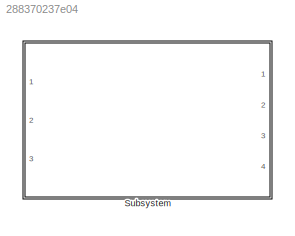
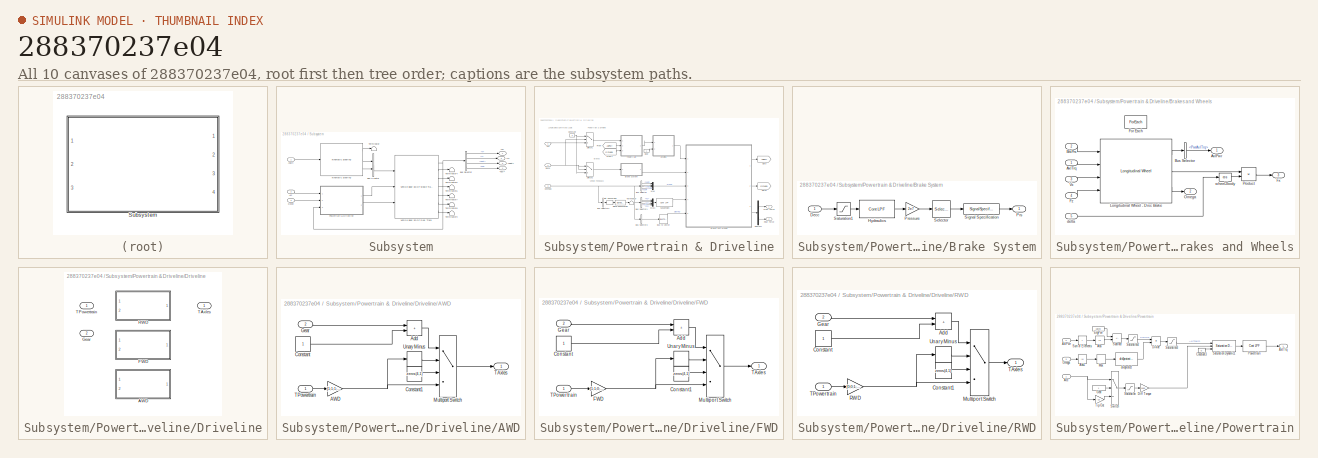
[diagram: thumbnail index - all 10 canvases of the model, root first then tree order]
MODEL slx_288370237e04
KIND model
CONFIG AbsTol = auto
CONFIG EnableMultiTasking = off
CONFIG FixedStep = auto
CONFIG MaxStep = auto
CONFIG MinStep = auto
CONFIG RelTol = 1e-3
CONFIG SampleTimeConstraint = Unconstrained
CONFIG Solver = VariableStepAuto
CONFIG SolverName = VariableStepAuto
CONFIG StartTime = 0.0
CONFIG StopTime = 10.0
BLOCK [SubSystem] Subsystem
  Ports = [3, 4]
  RequestExecContextInheritance = off
BLOCK [Outport] Subsystem/<X>
BLOCK [Outport] Subsystem/<Xdot>
  Port = 3
BLOCK [Outport] Subsystem/<Y>
  Port = 2
BLOCK [Outport] Subsystem/<psi>
  Port = 4
BLOCK [Inport] Subsystem/Acc
  Port = 2
BLOCK [Inport] Subsystem/AngIn
BLOCK [BusCreator] Subsystem/Bus Creator
  DisplayOption = bar
  InheritFromInputs = on
  Inputs = 2
  Ports = [2, 1]
BLOCK [BusSelector] Subsystem/Bus Selector
  OutputSignals = InertFrm.Cg.Disp.X,InertFrm.Cg.Disp.Y,InertFrm.Cg.Vel.Xdot,InertFrm.Cg.Ang.psi
  Ports = [1, 4]
BLOCK [Inport] Subsystem/Decel
  Port = 3
BLOCK [Reference] Subsystem/Kinematic Steering  REF=vehdynlibsteering/Kinematic Steering
  Ports = [1, 3]
  SourceBlock = vehdynlibsteering/Kinematic Steering
  SourceProductBaseCode = VE
  SourceType = Kinematic Steering
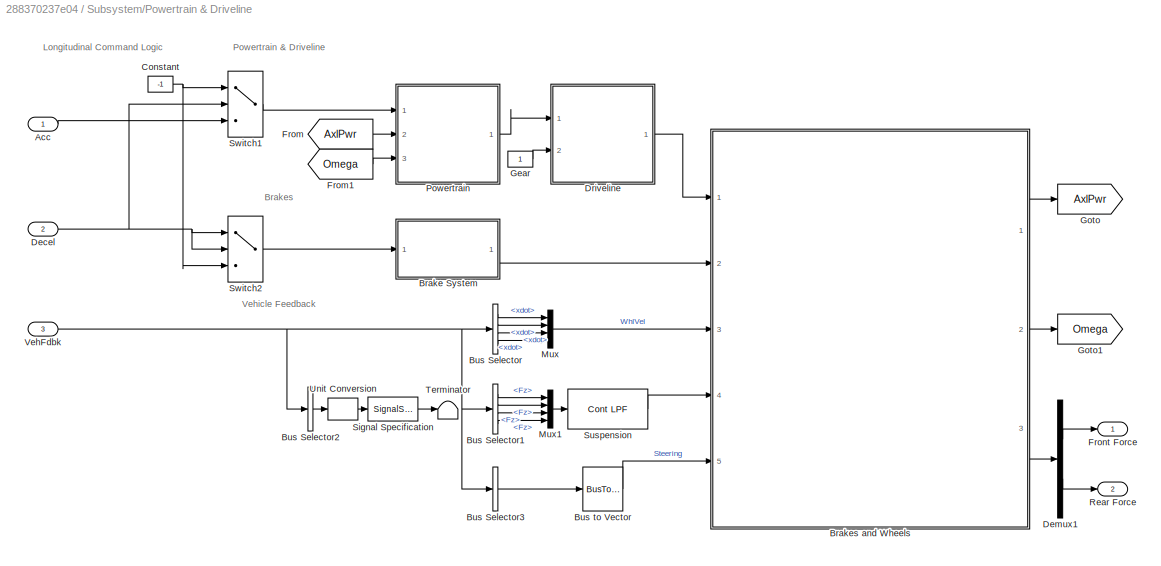
BLOCK [SubSystem] Subsystem/Powertrain & Driveline
  Ports = [3, 2]
  RequestExecContextInheritance = off
BLOCK [Inport] Subsystem/Powertrain & Driveline/Acc
  NameLocation = top
BLOCK [SubSystem] Subsystem/Powertrain & Driveline/Brake System
  Ports = [1, 1]
  RequestExecContextInheritance = off
BLOCK [Inport] Subsystem/Powertrain & Driveline/Brake System/Decc
BLOCK [Reference] Subsystem/Powertrain & Driveline/Brake System/Hydraulics  REF=autolibutils/Cont LPF
  Ports = [1, 1]
  SourceBlock = autolibutils/Cont LPF
  SourceProductBaseCode = PW,MT,VE,VP
BLOCK [Gain] Subsystem/Powertrain & Driveline/Brake System/Pressure
  Gain = 2e7
BLOCK [Outport] Subsystem/Powertrain & Driveline/Brake System/Prs
  VectorParamsAs1DForOutWhenUnconnected = off
BLOCK [Saturate] Subsystem/Powertrain & Driveline/Brake System/Saturation1
  LowerLimit = 0
  UpperLimit = inf
  ZeroCross = off
BLOCK [Selector] Subsystem/Powertrain & Driveline/Brake System/Selector
  IndexOptions = Index vector (dialog)
  Indices = [1 1 1 1]
  InputPortWidth = 1
  OutputSizes = 1
  Ports = [1, 1]
BLOCK [SignalSpecification] Subsystem/Powertrain & Driveline/Brake System/Signal Specification
  Unit = Pa
BLOCK [SubSystem] Subsystem/Powertrain & Driveline/Brakes and Wheels
  Ports = [5, 3]
  RequestExecContextInheritance = off
  TreatAsAtomicUnit = on
BLOCK [Outport] Subsystem/Powertrain & Driveline/Brakes and Wheels/AxlPwr
  ConcatenationDimension = 1
  VectorParamsAs1DForOutWhenUnconnected = off
BLOCK [Inport] Subsystem/Powertrain & Driveline/Brakes and Wheels/AxlTrq
  Partition = on
  PartitionDimension = 1
  PartitionOffset = 0
  PartitionWidth = 1
BLOCK [Inport] Subsystem/Powertrain & Driveline/Brakes and Wheels/BrkPrs
  Partition = on
  PartitionDimension = 1
  PartitionOffset = 0
  PartitionWidth = 1
  Port = 2
BLOCK [BusSelector] Subsystem/Powertrain & Driveline/Brakes and Wheels/Bus Selector
  OutputSignals = PwrInfo.PwrTrnsfrd.PwrAxlTrq
  Ports = [1, 1]
BLOCK [ForEach] Subsystem/Powertrain & Driveline/Brakes and Wheels/For Each
  DisableCoverage = on
  Ports = []
BLOCK [Outport] Subsystem/Powertrain & Driveline/Brakes and Wheels/Fx
  ConcatenationDimension = 1
  Port = 3
  VectorParamsAs1DForOutWhenUnconnected = off
BLOCK [Inport] Subsystem/Powertrain & Driveline/Brakes and Wheels/Fz
  Partition = on
  PartitionDimension = 1
  PartitionOffset = 0
  PartitionWidth = 1
  Port = 4
BLOCK [Reference] Subsystem/Powertrain & Driveline/Brakes and Wheels/Longitudinal Wheel - Disc Brake  REF=autolibshared/Longitudinal Wheel
  Ports = [4, 3]
  SourceBlock = autolibshared/Longitudinal Wheel
  SourceProductBaseCode = PW,MT,VE,VP
  SourceType = Longitudinal Wheel
BLOCK [Outport] Subsystem/Powertrain & Driveline/Brakes and Wheels/Omega
  ConcatenationDimension = 1
  Port = 2
  VectorParamsAs1DForOutWhenUnconnected = off
BLOCK [Product] Subsystem/Powertrain & Driveline/Brakes and Wheels/Product
  Ports = [2, 1]
BLOCK [Inport] Subsystem/Powertrain & Driveline/Brakes and Wheels/Vx
  Partition = on
  PartitionDimension = 1
  PartitionOffset = 0
  PartitionWidth = 1
  Port = 3
BLOCK [Inport] Subsystem/Powertrain & Driveline/Brakes and Wheels/delta
  Partition = on
  PartitionDimension = 1
  PartitionOffset = 0
  PartitionWidth = 1
  Port = 5
BLOCK [Trigonometry] Subsystem/Powertrain & Driveline/Brakes and Wheels/wheel2body
  Operator = cos
  Ports = [1, 1]
BLOCK [BusSelector] Subsystem/Powertrain & Driveline/Bus Selector
  OutputSignals = BdyFrm.FrntAxl.Lft.Vel.xdot,BdyFrm.FrntAxl.Rght.Vel.xdot,BdyFrm.RearAxl.Lft.Vel.xdot,BdyFrm.RearAxl.Rght.Vel.xdot
  Ports = [1, 4]
BLOCK [BusSelector] Subsystem/Powertrain & Driveline/Bus Selector1
  OutputSignals = BdyFrm.Forces.FrntAxl.Lft.Fz,BdyFrm.Forces.FrntAxl.Rght.Fz,BdyFrm.Forces.RearAxl.Lft.Fz,BdyFrm.Forces.RearAxl.Rght.Fz
  Ports = [1, 4]
BLOCK [BusSelector] Subsystem/Powertrain & Driveline/Bus Selector2
  OutputAsBus = on
  OutputSignals = BdyFrm.Cg.Vel.xdot
  Ports = [1, 1]
BLOCK [BusSelector] Subsystem/Powertrain & Driveline/Bus Selector3
  OutputAsBus = on
  OutputSignals = BdyFrm.FrntAxl.Steer.WhlAngFL,BdyFrm.FrntAxl.Steer.WhlAngFR,BdyFrm.RearAxl.Steer.WhlAngRL,BdyFrm.RearAxl.Steer.WhlAngRR
  Ports = [1, 1]
BLOCK [BusToVector] Subsystem/Powertrain & Driveline/Bus to Vector
BLOCK [Constant] Subsystem/Powertrain & Driveline/Constant
  NameLocation = top
  Value = -1
BLOCK [Inport] Subsystem/Powertrain & Driveline/Decel
  NameLocation = top
  Port = 2
BLOCK [Demux] Subsystem/Powertrain & Driveline/Demux1
  Outputs = [2 2]
  Ports = [1, 2]
BLOCK [SubSystem] Subsystem/Powertrain & Driveline/Driveline
  LabelModeActiveChoice = 0
  Ports = [2, 1]
  RequestExecContextInheritance = off
  Variant = on
  VariantControl = Variant1
  VariantControlMode = Label
BLOCK [SubSystem] Subsystem/Powertrain & Driveline/Driveline/AWD
  Ports = [2, 1]
  RequestExecContextInheritance = off
  VariantControl = 2
BLOCK [Gain] Subsystem/Powertrain & Driveline/Driveline/AWD/AWD
  Gain = [1;1;1;1]./2
BLOCK [Sum] Subsystem/Powertrain & Driveline/Driveline/AWD/Add
  IconShape = rectangular
  Ports = [2, 1]
BLOCK [Constant] Subsystem/Powertrain & Driveline/Driveline/AWD/Constant
BLOCK [Constant] Subsystem/Powertrain & Driveline/Driveline/AWD/Constant1
  Value = zeros(4,1)
BLOCK [Inport] Subsystem/Powertrain & Driveline/Driveline/AWD/Gear
  Port = 2
BLOCK [MultiPortSwitch] Subsystem/Powertrain & Driveline/Driveline/AWD/Multiport Switch
  DataPortOrder = Zero-based contiguous
  InputSameDT = off
  Ports = [4, 1]
  SaturateOnIntegerOverflow = off
  zeroidx = on
BLOCK [Outport] Subsystem/Powertrain & Driveline/Driveline/AWD/TAxles
  VectorParamsAs1DForOutWhenUnconnected = off
BLOCK [Inport] Subsystem/Powertrain & Driveline/Driveline/AWD/TPowertrain
BLOCK [UnaryMinus] Subsystem/Powertrain & Driveline/Driveline/AWD/Unary Minus
BLOCK [SubSystem] Subsystem/Powertrain & Driveline/Driveline/FWD
  Ports = [2, 1]
  RequestExecContextInheritance = off
  VariantControl = 1
BLOCK [Sum] Subsystem/Powertrain & Driveline/Driveline/FWD/Add
  IconShape = rectangular
  Ports = [2, 1]
BLOCK [Constant] Subsystem/Powertrain & Driveline/Driveline/FWD/Constant
BLOCK [Constant] Subsystem/Powertrain & Driveline/Driveline/FWD/Constant1
  Value = zeros(4,1)
BLOCK [Gain] Subsystem/Powertrain & Driveline/Driveline/FWD/FWD
  Gain = [1;1;0;0]
BLOCK [Inport] Subsystem/Powertrain & Driveline/Driveline/FWD/Gear
  Port = 2
BLOCK [MultiPortSwitch] Subsystem/Powertrain & Driveline/Driveline/FWD/Multiport Switch
  DataPortOrder = Zero-based contiguous
  InputSameDT = off
  Ports = [4, 1]
  SaturateOnIntegerOverflow = off
  zeroidx = on
BLOCK [Outport] Subsystem/Powertrain & Driveline/Driveline/FWD/TAxles
  VectorParamsAs1DForOutWhenUnconnected = off
BLOCK [Inport] Subsystem/Powertrain & Driveline/Driveline/FWD/TPowertrain
BLOCK [UnaryMinus] Subsystem/Powertrain & Driveline/Driveline/FWD/Unary Minus
BLOCK [Inport] Subsystem/Powertrain & Driveline/Driveline/Gear
  Port = 2
BLOCK [SubSystem] Subsystem/Powertrain & Driveline/Driveline/RWD
  Ports = [2, 1]
  RequestExecContextInheritance = off
  VariantControl = 0
BLOCK [Sum] Subsystem/Powertrain & Driveline/Driveline/RWD/Add
  IconShape = rectangular
  Ports = [2, 1]
BLOCK [Constant] Subsystem/Powertrain & Driveline/Driveline/RWD/Constant
BLOCK [Constant] Subsystem/Powertrain & Driveline/Driveline/RWD/Constant1
  Value = zeros(4,1)
BLOCK [Inport] Subsystem/Powertrain & Driveline/Driveline/RWD/Gear
  Port = 2
BLOCK [MultiPortSwitch] Subsystem/Powertrain & Driveline/Driveline/RWD/Multiport Switch
  DataPortOrder = Zero-based contiguous
  InputSameDT = off
  Ports = [4, 1]
  SaturateOnIntegerOverflow = off
  zeroidx = on
BLOCK [Gain] Subsystem/Powertrain & Driveline/Driveline/RWD/RWD
  Gain = [0;0;1;1]
BLOCK [Outport] Subsystem/Powertrain & Driveline/Driveline/RWD/TAxles
  VectorParamsAs1DForOutWhenUnconnected = off
BLOCK [Inport] Subsystem/Powertrain & Driveline/Driveline/RWD/TPowertrain
BLOCK [UnaryMinus] Subsystem/Powertrain & Driveline/Driveline/RWD/Unary Minus
BLOCK [Outport] Subsystem/Powertrain & Driveline/Driveline/TAxles
  VectorParamsAs1DForOutWhenUnconnected = off
BLOCK [Inport] Subsystem/Powertrain & Driveline/Driveline/TPowertrain
BLOCK [From] Subsystem/Powertrain & Driveline/From
  GotoTag = AxlPwr
BLOCK [From] Subsystem/Powertrain & Driveline/From1
  GotoTag = Omega
BLOCK [Outport] Subsystem/Powertrain & Driveline/Front Force
  VectorParamsAs1DForOutWhenUnconnected = off
BLOCK [Constant] Subsystem/Powertrain & Driveline/Gear
BLOCK [Goto] Subsystem/Powertrain & Driveline/Goto
  GotoTag = AxlPwr
BLOCK [Goto] Subsystem/Powertrain & Driveline/Goto1
  GotoTag = Omega
BLOCK [Mux] Subsystem/Powertrain & Driveline/Mux
  DisplayOption = bar
  Ports = [4, 1]
BLOCK [Mux] Subsystem/Powertrain & Driveline/Mux1
  DisplayOption = bar
  Ports = [4, 1]
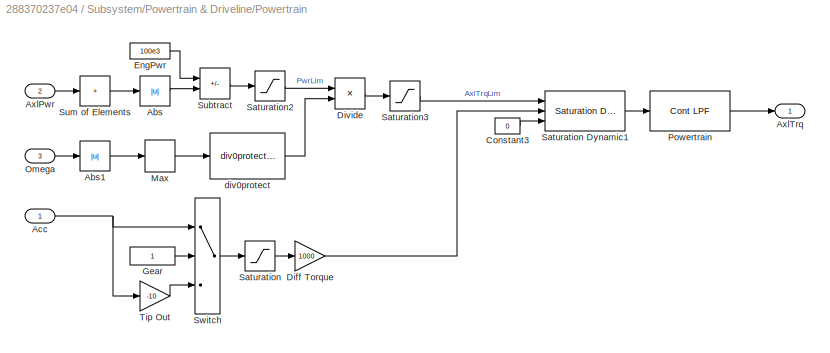
BLOCK [SubSystem] Subsystem/Powertrain & Driveline/Powertrain
  Ports = [3, 1]
  RequestExecContextInheritance = off
BLOCK [Abs] Subsystem/Powertrain & Driveline/Powertrain/Abs
  SaturateOnIntegerOverflow = off
  ZeroCross = off
BLOCK [Abs] Subsystem/Powertrain & Driveline/Powertrain/Abs1
  SaturateOnIntegerOverflow = off
  ZeroCross = off
BLOCK [Inport] Subsystem/Powertrain & Driveline/Powertrain/Acc
BLOCK [Inport] Subsystem/Powertrain & Driveline/Powertrain/AxlPwr
  Port = 2
BLOCK [Outport] Subsystem/Powertrain & Driveline/Powertrain/AxlTrq
  VectorParamsAs1DForOutWhenUnconnected = off
BLOCK [Constant] Subsystem/Powertrain & Driveline/Powertrain/Constant3
  NameLocation = top
  Value = 0
BLOCK [Gain] Subsystem/Powertrain & Driveline/Powertrain/Diff Torque
  Gain = 1000
BLOCK [Product] Subsystem/Powertrain & Driveline/Powertrain/Divide
  Inputs = */
  Ports = [2, 1]
BLOCK [Constant] Subsystem/Powertrain & Driveline/Powertrain/EngPwr
  NameLocation = top
  Value = 100e3
BLOCK [Constant] Subsystem/Powertrain & Driveline/Powertrain/Gear
  SampleTime = -1
BLOCK [MinMax] Subsystem/Powertrain & Driveline/Powertrain/Max
  Function = max
  Ports = [1, 1]
  ZeroCross = off
BLOCK [Inport] Subsystem/Powertrain & Driveline/Powertrain/Omega
  Port = 3
BLOCK [Reference] Subsystem/Powertrain & Driveline/Powertrain/Powertrain  REF=autolibutils/Cont LPF
  Ports = [1, 1]
  SourceBlock = autolibutils/Cont LPF
  SourceProductBaseCode = PW,MT,VE,VP
BLOCK [Saturate] Subsystem/Powertrain & Driveline/Powertrain/Saturation
  LowerLimit = 0
  UpperLimit = inf
  ZeroCross = off
BLOCK [Reference] Subsystem/Powertrain & Driveline/Powertrain/Saturation Dynamic1  REF=simulink/Discontinuities/Saturation
Dynamic
  Ports = [3, 1]
  SourceBlock = simulink/Discontinuities/Saturation\nDynamic
  SourceProductBaseCode = SL
  SourceType = Saturation Dynamic
BLOCK [Saturate] Subsystem/Powertrain & Driveline/Powertrain/Saturation2
  LowerLimit = 100
  UpperLimit = inf
  ZeroCross = off
BLOCK [Saturate] Subsystem/Powertrain & Driveline/Powertrain/Saturation3
  LowerLimit = 0
  UpperLimit = 1000
  ZeroCross = off
BLOCK [Sum] Subsystem/Powertrain & Driveline/Powertrain/Subtract
  IconShape = rectangular
  Inputs = +-
  Ports = [2, 1]
BLOCK [Sum] Subsystem/Powertrain & Driveline/Powertrain/Sum of Elements
  IconShape = rectangular
  Inputs = +
  Ports = [1, 1]
BLOCK [Switch] Subsystem/Powertrain & Driveline/Powertrain/Switch
  InputSameDT = off
  SaturateOnIntegerOverflow = off
  ZeroCross = off
BLOCK [Gain] Subsystem/Powertrain & Driveline/Powertrain/Tip Out
  Gain = -10
BLOCK [Reference] Subsystem/Powertrain & Driveline/Powertrain/div0protect  REF=autolibutils/div0protect - poly
  Ports = [1, 1]
  SourceBlock = autolibutils/div0protect - poly
  SourceProductBaseCode = PW,MT,VE,VP
BLOCK [Outport] Subsystem/Powertrain & Driveline/Rear Force
  Port = 2
  VectorParamsAs1DForOutWhenUnconnected = off
BLOCK [SignalSpecification] Subsystem/Powertrain & Driveline/Signal Specification
  Unit = km/hr
BLOCK [Reference] Subsystem/Powertrain & Driveline/Suspension  REF=autolibutils/Cont LPF
  Ports = [1, 1]
  SourceBlock = autolibutils/Cont LPF
  SourceProductBaseCode = PW,MT,VE,VP
BLOCK [Switch] Subsystem/Powertrain & Driveline/Switch1
  Criteria = u2 > Threshold
  InputSameDT = off
  SaturateOnIntegerOverflow = off
BLOCK [Switch] Subsystem/Powertrain & Driveline/Switch2
  Criteria = u2 > Threshold
  InputSameDT = off
  SaturateOnIntegerOverflow = off
BLOCK [Terminator] Subsystem/Powertrain & Driveline/Terminator
BLOCK [UnitConversion] Subsystem/Powertrain & Driveline/Unit Conversion
BLOCK [Inport] Subsystem/Powertrain & Driveline/VehFdbk
  Port = 3
BLOCK [Terminator] Subsystem/Terminator
BLOCK [Terminator] Subsystem/Terminator4
BLOCK [Terminator] Subsystem/Terminator5
BLOCK [Terminator] Subsystem/Terminator6
BLOCK [Terminator] Subsystem/Terminator7
BLOCK [Terminator] Subsystem/Terminator8
BLOCK [Terminator] Subsystem/Terminator9
BLOCK [Reference] Subsystem/Vehicle Body 3DOF Dual Track  REF=autolibshared/Vehicle Body 3DOF Single Track
  Ports = [3, 7]
  SourceBlock = autolibshared/Vehicle Body 3DOF Single Track
  SourceProductBaseCode = PW,MT,VE,VP
  SourceType = Vehicle Body 3DOF Lateral
ANNOTATION Subsystem/Powertrain & Driveline: Brakes
ANNOTATION Subsystem/Powertrain & Driveline: Longitudinal Command Logic
ANNOTATION Subsystem/Powertrain & Driveline: Powertrain & Driveline
ANNOTATION Subsystem/Powertrain & Driveline: Vehicle Feedback
LINE Subsystem/Acc:1 -> Subsystem/Powertrain & Driveline:1
LINE Subsystem/AngIn:1 -> Subsystem/Kinematic Steering:1
LINE Subsystem/Bus Creator:1 -> Subsystem/Vehicle Body 3DOF Dual Track:1
LINE Subsystem/Bus Selector:1 -> Subsystem/<X>:1
LINE Subsystem/Bus Selector:2 -> Subsystem/<Y>:1
LINE Subsystem/Bus Selector:3 -> Subsystem/<Xdot>:1
LINE Subsystem/Bus Selector:4 -> Subsystem/<psi>:1
LINE Subsystem/Decel:1 -> Subsystem/Powertrain & Driveline:2
LINE Subsystem/Kinematic Steering:1 -> Subsystem/Terminator:1
LINE Subsystem/Kinematic Steering:2 -> Subsystem/Bus Creator:1
LINE Subsystem/Kinematic Steering:3 -> Subsystem/Bus Creator:2
LINE Subsystem/Powertrain & Driveline/Acc:1 -> Subsystem/Powertrain & Driveline/Switch1:3
LINE Subsystem/Powertrain & Driveline/Brake System/Decc:1 -> Subsystem/Powertrain & Driveline/Brake System/Saturation1:1
LINE Subsystem/Powertrain & Driveline/Brake System/Hydraulics:1 -> Subsystem/Powertrain & Driveline/Brake System/Pressure:1
LINE Subsystem/Powertrain & Driveline/Brake System/Pressure:1 -> Subsystem/Powertrain & Driveline/Brake System/Selector:1
LINE Subsystem/Powertrain & Driveline/Brake System/Saturation1:1 -> Subsystem/Powertrain & Driveline/Brake System/Hydraulics:1
LINE Subsystem/Powertrain & Driveline/Brake System/Selector:1 -> Subsystem/Powertrain & Driveline/Brake System/Signal Specification:1
LINE Subsystem/Powertrain & Driveline/Brake System/Signal Specification:1 -> Subsystem/Powertrain & Driveline/Brake System/Prs:1
LINE Subsystem/Powertrain & Driveline/Brake System:1 -> Subsystem/Powertrain & Driveline/Brakes and Wheels:2
LINE Subsystem/Powertrain & Driveline/Brakes and Wheels/AxlTrq:1 -> Subsystem/Powertrain & Driveline/Brakes and Wheels/Longitudinal Wheel - Disc Brake:2
LINE Subsystem/Powertrain & Driveline/Brakes and Wheels/BrkPrs:1 -> Subsystem/Powertrain & Driveline/Brakes and Wheels/Longitudinal Wheel - Disc Brake:1
LINE Subsystem/Powertrain & Driveline/Brakes and Wheels/Bus Selector:1 -> Subsystem/Powertrain & Driveline/Brakes and Wheels/AxlPwr:1
LINE Subsystem/Powertrain & Driveline/Brakes and Wheels/Fz:1 -> Subsystem/Powertrain & Driveline/Brakes and Wheels/Longitudinal Wheel - Disc Brake:4
LINE Subsystem/Powertrain & Driveline/Brakes and Wheels/Longitudinal Wheel - Disc Brake:1 -> Subsystem/Powertrain & Driveline/Brakes and Wheels/Bus Selector:1
LINE Subsystem/Powertrain & Driveline/Brakes and Wheels/Longitudinal Wheel - Disc Brake:2 -> Subsystem/Powertrain & Driveline/Brakes and Wheels/Product:1
LINE Subsystem/Powertrain & Driveline/Brakes and Wheels/Longitudinal Wheel - Disc Brake:3 -> Subsystem/Powertrain & Driveline/Brakes and Wheels/Omega:1
LINE Subsystem/Powertrain & Driveline/Brakes and Wheels/Product:1 -> Subsystem/Powertrain & Driveline/Brakes and Wheels/Fx:1
LINE Subsystem/Powertrain & Driveline/Brakes and Wheels/Vx:1 -> Subsystem/Powertrain & Driveline/Brakes and Wheels/Longitudinal Wheel - Disc Brake:3
LINE Subsystem/Powertrain & Driveline/Brakes and Wheels/delta:1 -> Subsystem/Powertrain & Driveline/Brakes and Wheels/wheel2body:1
LINE Subsystem/Powertrain & Driveline/Brakes and Wheels/wheel2body:1 -> Subsystem/Powertrain & Driveline/Brakes and Wheels/Product:2
LINE Subsystem/Powertrain & Driveline/Brakes and Wheels:1 -> Subsystem/Powertrain & Driveline/Goto:1
LINE Subsystem/Powertrain & Driveline/Brakes and Wheels:2 -> Subsystem/Powertrain & Driveline/Goto1:1
LINE Subsystem/Powertrain & Driveline/Brakes and Wheels:3 -> Subsystem/Powertrain & Driveline/Demux1:1
LINE Subsystem/Powertrain & Driveline/Bus Selector1:1 -> Subsystem/Powertrain & Driveline/Mux1:1
LINE Subsystem/Powertrain & Driveline/Bus Selector1:2 -> Subsystem/Powertrain & Driveline/Mux1:2
LINE Subsystem/Powertrain & Driveline/Bus Selector1:3 -> Subsystem/Powertrain & Driveline/Mux1:3
LINE Subsystem/Powertrain & Driveline/Bus Selector1:4 -> Subsystem/Powertrain & Driveline/Mux1:4
LINE Subsystem/Powertrain & Driveline/Bus Selector2:1 -> Subsystem/Powertrain & Driveline/Unit Conversion:1
LINE Subsystem/Powertrain & Driveline/Bus Selector3:1 -> Subsystem/Powertrain & Driveline/Bus to Vector:1
LINE Subsystem/Powertrain & Driveline/Bus Selector:1 -> Subsystem/Powertrain & Driveline/Mux:1
LINE Subsystem/Powertrain & Driveline/Bus Selector:2 -> Subsystem/Powertrain & Driveline/Mux:2
LINE Subsystem/Powertrain & Driveline/Bus Selector:3 -> Subsystem/Powertrain & Driveline/Mux:3
LINE Subsystem/Powertrain & Driveline/Bus Selector:4 -> Subsystem/Powertrain & Driveline/Mux:4
LINE Subsystem/Powertrain & Driveline/Bus to Vector:1 -> Subsystem/Powertrain & Driveline/Brakes and Wheels:5
NET Subsystem/Powertrain & Driveline/Constant:1 -> Subsystem/Powertrain & Driveline/Switch1:1, Subsystem/Powertrain & Driveline/Switch2:3
NET Subsystem/Powertrain & Driveline/Decel:1 -> Subsystem/Powertrain & Driveline/Switch1:2, Subsystem/Powertrain & Driveline/Switch2:1, Subsystem/Powertrain & Driveline/Switch2:2
LINE Subsystem/Powertrain & Driveline/Demux1:1 -> Subsystem/Powertrain & Driveline/Front Force:1
LINE Subsystem/Powertrain & Driveline/Demux1:2 -> Subsystem/Powertrain & Driveline/Rear Force:1
NET Subsystem/Powertrain & Driveline/Driveline/AWD/AWD:1 -> Subsystem/Powertrain & Driveline/Driveline/AWD/Multiport Switch:4, Subsystem/Powertrain & Driveline/Driveline/AWD/Unary Minus:1
LINE Subsystem/Powertrain & Driveline/Driveline/AWD/Add:1 -> Subsystem/Powertrain & Driveline/Driveline/AWD/Multiport Switch:1
LINE Subsystem/Powertrain & Driveline/Driveline/AWD/Constant1:1 -> Subsystem/Powertrain & Driveline/Driveline/AWD/Multiport Switch:3
LINE Subsystem/Powertrain & Driveline/Driveline/AWD/Constant:1 -> Subsystem/Powertrain & Driveline/Driveline/AWD/Add:2
LINE Subsystem/Powertrain & Driveline/Driveline/AWD/Gear:1 -> Subsystem/Powertrain & Driveline/Driveline/AWD/Add:1
LINE Subsystem/Powertrain & Driveline/Driveline/AWD/Multiport Switch:1 -> Subsystem/Powertrain & Driveline/Driveline/AWD/TAxles:1
LINE Subsystem/Powertrain & Driveline/Driveline/AWD/TPowertrain:1 -> Subsystem/Powertrain & Driveline/Driveline/AWD/AWD:1
LINE Subsystem/Powertrain & Driveline/Driveline/AWD/Unary Minus:1 -> Subsystem/Powertrain & Driveline/Driveline/AWD/Multiport Switch:2
LINE Subsystem/Powertrain & Driveline/Driveline/FWD/Add:1 -> Subsystem/Powertrain & Driveline/Driveline/FWD/Multiport Switch:1
LINE Subsystem/Powertrain & Driveline/Driveline/FWD/Constant1:1 -> Subsystem/Powertrain & Driveline/Driveline/FWD/Multiport Switch:3
LINE Subsystem/Powertrain & Driveline/Driveline/FWD/Constant:1 -> Subsystem/Powertrain & Driveline/Driveline/FWD/Add:2
NET Subsystem/Powertrain & Driveline/Driveline/FWD/FWD:1 -> Subsystem/Powertrain & Driveline/Driveline/FWD/Multiport Switch:4, Subsystem/Powertrain & Driveline/Driveline/FWD/Unary Minus:1
LINE Subsystem/Powertrain & Driveline/Driveline/FWD/Gear:1 -> Subsystem/Powertrain & Driveline/Driveline/FWD/Add:1
LINE Subsystem/Powertrain & Driveline/Driveline/FWD/Multiport Switch:1 -> Subsystem/Powertrain & Driveline/Driveline/FWD/TAxles:1
LINE Subsystem/Powertrain & Driveline/Driveline/FWD/TPowertrain:1 -> Subsystem/Powertrain & Driveline/Driveline/FWD/FWD:1
LINE Subsystem/Powertrain & Driveline/Driveline/FWD/Unary Minus:1 -> Subsystem/Powertrain & Driveline/Driveline/FWD/Multiport Switch:2
LINE Subsystem/Powertrain & Driveline/Driveline/RWD/Add:1 -> Subsystem/Powertrain & Driveline/Driveline/RWD/Multiport Switch:1
LINE Subsystem/Powertrain & Driveline/Driveline/RWD/Constant1:1 -> Subsystem/Powertrain & Driveline/Driveline/RWD/Multiport Switch:3
LINE Subsystem/Powertrain & Driveline/Driveline/RWD/Constant:1 -> Subsystem/Powertrain & Driveline/Driveline/RWD/Add:2
LINE Subsystem/Powertrain & Driveline/Driveline/RWD/Gear:1 -> Subsystem/Powertrain & Driveline/Driveline/RWD/Add:1
LINE Subsystem/Powertrain & Driveline/Driveline/RWD/Multiport Switch:1 -> Subsystem/Powertrain & Driveline/Driveline/RWD/TAxles:1
NET Subsystem/Powertrain & Driveline/Driveline/RWD/RWD:1 -> Subsystem/Powertrain & Driveline/Driveline/RWD/Multiport Switch:4, Subsystem/Powertrain & Driveline/Driveline/RWD/Unary Minus:1
LINE Subsystem/Powertrain & Driveline/Driveline/RWD/TPowertrain:1 -> Subsystem/Powertrain & Driveline/Driveline/RWD/RWD:1
LINE Subsystem/Powertrain & Driveline/Driveline/RWD/Unary Minus:1 -> Subsystem/Powertrain & Driveline/Driveline/RWD/Multiport Switch:2
LINE Subsystem/Powertrain & Driveline/Driveline:1 -> Subsystem/Powertrain & Driveline/Brakes and Wheels:1
LINE Subsystem/Powertrain & Driveline/From1:1 -> Subsystem/Powertrain & Driveline/Powertrain:3
LINE Subsystem/Powertrain & Driveline/From:1 -> Subsystem/Powertrain & Driveline/Powertrain:2
LINE Subsystem/Powertrain & Driveline/Gear:1 -> Subsystem/Powertrain & Driveline/Driveline:2
LINE Subsystem/Powertrain & Driveline/Mux1:1 -> Subsystem/Powertrain & Driveline/Suspension:1
LINE Subsystem/Powertrain & Driveline/Mux:1 -> Subsystem/Powertrain & Driveline/Brakes and Wheels:3
LINE Subsystem/Powertrain & Driveline/Powertrain/Abs1:1 -> Subsystem/Powertrain & Driveline/Powertrain/Max:1
LINE Subsystem/Powertrain & Driveline/Powertrain/Abs:1 -> Subsystem/Powertrain & Driveline/Powertrain/Subtract:2
NET Subsystem/Powertrain & Driveline/Powertrain/Acc:1 -> Subsystem/Powertrain & Driveline/Powertrain/Switch:1, Subsystem/Powertrain & Driveline/Powertrain/Tip Out:1
LINE Subsystem/Powertrain & Driveline/Powertrain/AxlPwr:1 -> Subsystem/Powertrain & Driveline/Powertrain/Sum of Elements:1
LINE Subsystem/Powertrain & Driveline/Powertrain/Constant3:1 -> Subsystem/Powertrain & Driveline/Powertrain/Saturation Dynamic1:3
LINE Subsystem/Powertrain & Driveline/Powertrain/Diff Torque:1 -> Subsystem/Powertrain & Driveline/Powertrain/Saturation Dynamic1:2
LINE Subsystem/Powertrain & Driveline/Powertrain/Divide:1 -> Subsystem/Powertrain & Driveline/Powertrain/Saturation3:1
LINE Subsystem/Powertrain & Driveline/Powertrain/EngPwr:1 -> Subsystem/Powertrain & Driveline/Powertrain/Subtract:1
LINE Subsystem/Powertrain & Driveline/Powertrain/Gear:1 -> Subsystem/Powertrain & Driveline/Powertrain/Switch:2
LINE Subsystem/Powertrain & Driveline/Powertrain/Max:1 -> Subsystem/Powertrain & Driveline/Powertrain/div0protect:1
LINE Subsystem/Powertrain & Driveline/Powertrain/Omega:1 -> Subsystem/Powertrain & Driveline/Powertrain/Abs1:1
LINE Subsystem/Powertrain & Driveline/Powertrain/Powertrain:1 -> Subsystem/Powertrain & Driveline/Powertrain/AxlTrq:1
LINE Subsystem/Powertrain & Driveline/Powertrain/Saturation Dynamic1:1 -> Subsystem/Powertrain & Driveline/Powertrain/Powertrain:1
LINE Subsystem/Powertrain & Driveline/Powertrain/Saturation2:1 -> Subsystem/Powertrain & Driveline/Powertrain/Divide:1
LINE Subsystem/Powertrain & Driveline/Powertrain/Saturation3:1 -> Subsystem/Powertrain & Driveline/Powertrain/Saturation Dynamic1:1
LINE Subsystem/Powertrain & Driveline/Powertrain/Saturation:1 -> Subsystem/Powertrain & Driveline/Powertrain/Diff Torque:1
LINE Subsystem/Powertrain & Driveline/Powertrain/Subtract:1 -> Subsystem/Powertrain & Driveline/Powertrain/Saturation2:1
LINE Subsystem/Powertrain & Driveline/Powertrain/Sum of Elements:1 -> Subsystem/Powertrain & Driveline/Powertrain/Abs:1
LINE Subsystem/Powertrain & Driveline/Powertrain/Switch:1 -> Subsystem/Powertrain & Driveline/Powertrain/Saturation:1
LINE Subsystem/Powertrain & Driveline/Powertrain/Tip Out:1 -> Subsystem/Powertrain & Driveline/Powertrain/Switch:3
LINE Subsystem/Powertrain & Driveline/Powertrain/div0protect:1 -> Subsystem/Powertrain & Driveline/Powertrain/Divide:2
LINE Subsystem/Powertrain & Driveline/Powertrain:1 -> Subsystem/Powertrain & Driveline/Driveline:1
LINE Subsystem/Powertrain & Driveline/Signal Specification:1 -> Subsystem/Powertrain & Driveline/Terminator:1
LINE Subsystem/Powertrain & Driveline/Suspension:1 -> Subsystem/Powertrain & Driveline/Brakes and Wheels:4
LINE Subsystem/Powertrain & Driveline/Switch1:1 -> Subsystem/Powertrain & Driveline/Powertrain:1
LINE Subsystem/Powertrain & Driveline/Switch2:1 -> Subsystem/Powertrain & Driveline/Brake System:1
LINE Subsystem/Powertrain & Driveline/Unit Conversion:1 -> Subsystem/Powertrain & Driveline/Signal Specification:1
NET Subsystem/Powertrain & Driveline/VehFdbk:1 -> Subsystem/Powertrain & Driveline/Bus Selector1:1, Subsystem/Powertrain & Driveline/Bus Selector2:1, Subsystem/Powertrain & Driveline/Bus Selector3:1, Subsystem/Powertrain & Driveline/Bus Selector:1
LINE Subsystem/Powertrain & Driveline:1 -> Subsystem/Vehicle Body 3DOF Dual Track:2
LINE Subsystem/Powertrain & Driveline:2 -> Subsystem/Vehicle Body 3DOF Dual Track:3
NET Subsystem/Vehicle Body 3DOF Dual Track:1 -> Subsystem/Bus Selector:1, Subsystem/Powertrain & Driveline:3
LINE Subsystem/Vehicle Body 3DOF Dual Track:2 -> Subsystem/Terminator4:1
LINE Subsystem/Vehicle Body 3DOF Dual Track:3 -> Subsystem/Terminator5:1
LINE Subsystem/Vehicle Body 3DOF Dual Track:4 -> Subsystem/Terminator6:1
LINE Subsystem/Vehicle Body 3DOF Dual Track:5 -> Subsystem/Terminator7:1
LINE Subsystem/Vehicle Body 3DOF Dual Track:6 -> Subsystem/Terminator8:1
LINE Subsystem/Vehicle Body 3DOF Dual Track:7 -> Subsystem/Terminator9:1
note: NET lines group one-source signal fan-out (src -> all destinations, sorted); 1:1 wires keep LINE
